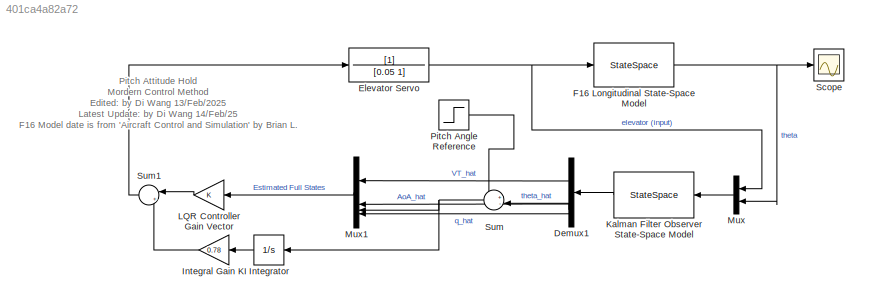
MODEL slx_401ca4a82a72
KIND model
CONFIG AbsTol = auto
CONFIG EnableMultiTasking = off
CONFIG FixedStep = auto
CONFIG MaxStep = auto
CONFIG MinStep = auto
CONFIG RelTol = 1e-3
CONFIG SampleTimeConstraint = Unconstrained
CONFIG SolverName = VariableStepAuto
CONFIG StartTime = 0.0
CONFIG StopTime = 25
BLOCK [Demux] Demux1
  NameLocation = top
BLOCK [TransferFcn] Elevator Servo
  Denominator = [0.05 1]
BLOCK [StateSpace] F16 Longitudinal State-Space Model
  A = sysLong.A
  B = sysLong.B
  C = sysLong.C
  D = sysLong.D
  InitialCondition = 0
BLOCK [Gain] Integral Gain KI
  Gain = 0.78
  NameLocation = top
BLOCK [Integrator] Integrator
  NameLocation = top
BLOCK [StateSpace] Kalman Filter Observer State-Space Model
  A = sysKf.A
  B = sysKf.B
  C = sysKf.C
  D = sysKf.D
  InitialCondition = 0
BLOCK [Gain] LQR Controller Gain Vector
  Gain = K
  Multiplication = Matrix(K*u)
  NameLocation = top
BLOCK [Mux] Mux
  DisplayOption = bar
  Inputs = 2
  NameLocation = top
BLOCK [Mux] Mux1
  DisplayOption = bar
  NameLocation = top
BLOCK [Step] Pitch Angle Reference
  SampleTime = 0
BLOCK [Scope] Scope
  Floating = off
  NumInputPorts = 1
  ScopeSpecificationString = Simulink.scopes.TimeScopeBlockCfg('CurrentConfiguration', extmgr.ConfigurationSet(extmgr.Configuration('Core','General UI',true),extmgr.Configuration('Core','Source UI',true),extmgr.Configuration('Sources','WiredSimulink',true),extmgr.Configuration('Visuals','Time Domain',true,'SerializedDisplays',{struct('MinYLimReal','-0.12339','MaxYLimReal','1.11051','YLabelReal','','MinYLimMag','0.00000','MaxY...<+1444ch>
BLOCK [Sum] Sum
  Inputs = +-|
  NameLocation = top
BLOCK [Sum] Sum1
  Inputs = |++
  NameLocation = top
ANNOTATION (root): Pitch Attitude Hold Mordern Control Method Edited: by Di Wang 13/Feb/2025 Latest Update: by Di Wang 14/Feb/25 F16 Model date is from 'Aircraft Control and Simulation' by Brian L.
LINE Demux1:1 -> Mux1:1
LINE Demux1:2 -> Mux1:2
LINE Demux1:3 -> Sum:2
LINE Demux1:4 -> Mux1:4
NET Elevator Servo:1 -> F16 Longitudinal State-Space Model:1, Mux:1
NET F16 Longitudinal State-Space Model:1 -> Mux:2, Scope:1
LINE Integral Gain KI:1 -> Sum1:2
LINE Integrator:1 -> Integral Gain KI:1
LINE Kalman Filter Observer State-Space Model:1 -> Demux1:1
LINE LQR Controller Gain Vector:1 -> Sum1:1
LINE Mux1:1 -> LQR Controller Gain Vector:1
LINE Mux:1 -> Kalman Filter Observer State-Space Model:1
LINE Pitch Angle Reference:1 -> Sum:1
LINE Sum1:1 -> Elevator Servo:1
NET Sum:1 -> Integrator:1, Mux1:3
note: NET lines group one-source signal fan-out (src -> all destinations, sorted); 1:1 wires keep LINE
